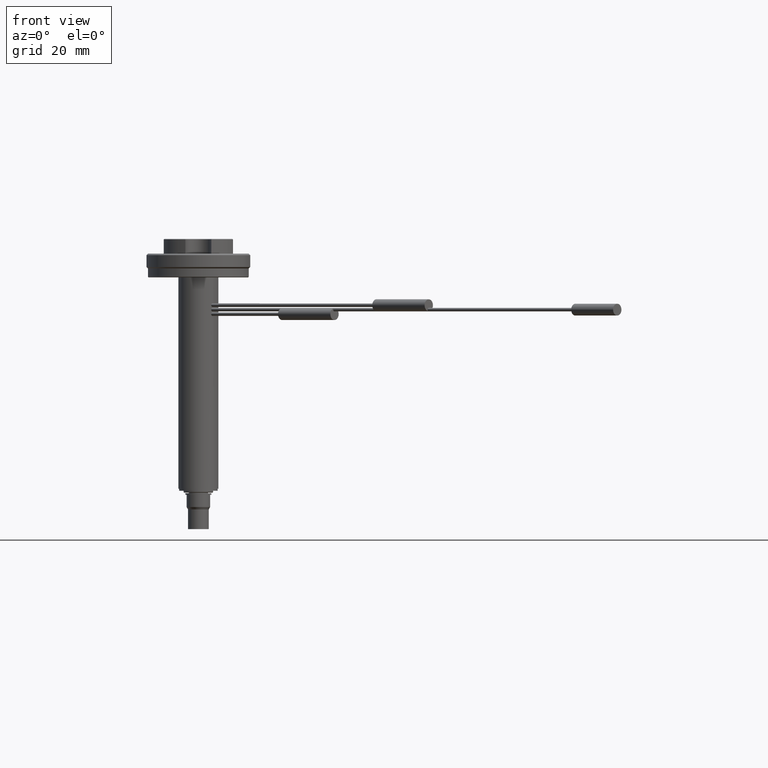
[diagram: clean part render]
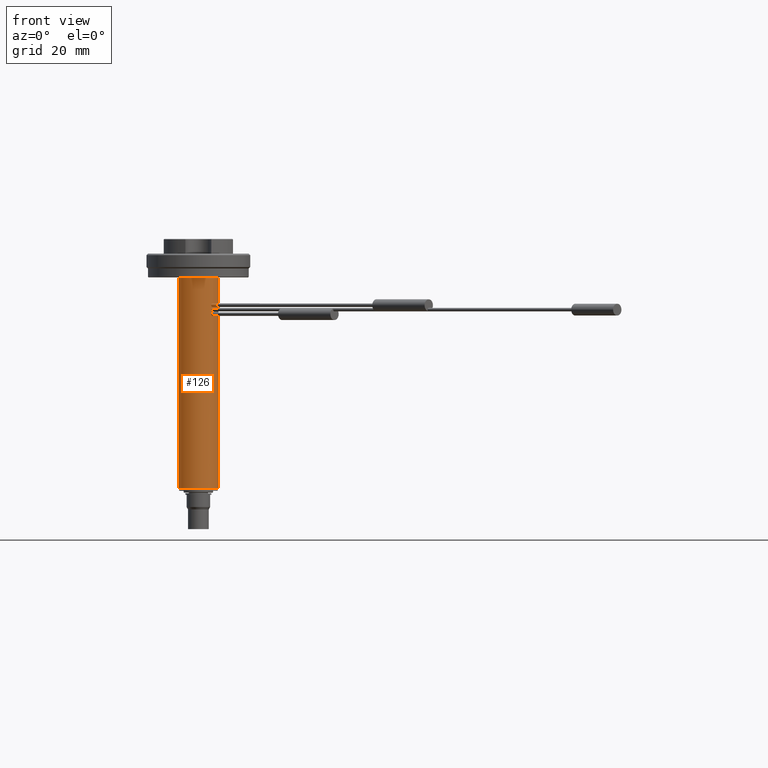
[diagram: same view with one face highlighted and labeled with its STEP entity id]
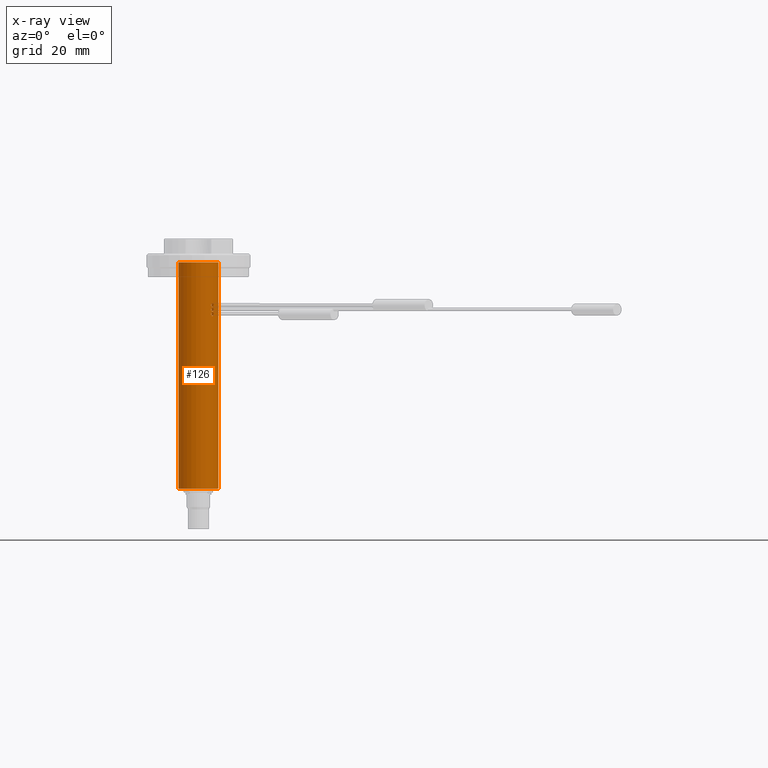
[diagram: x-ray of the same camera — body ghosted, the highlighted face saturated]
A machine part, front view. The second image highlights one B-rep face of the part: STEP entity #126.
The next image is the same camera in x-ray: the body ghosted, the highlighted face saturated — about 0% of this face is hidden behind the body in this view.
In plain terms, the highlighted cylindrical surface (bore or boss wall) has radius 6.75 mm, axis along (0, 0, 1).
Its self-contained STEP definition (entity closure, byte-faithful):
#126=ADVANCED_FACE('',(#325,#326,#327,#328,#329),#205,.T.);
#205=CYLINDRICAL_SURFACE('',#1048,6.75000000000002);
#235=CIRCLE('',#1046,6.75);
#236=CIRCLE('',#1047,6.74999999999999);
#325=FACE_BOUND('',#454,.T.);
#326=FACE_BOUND('',#455,.T.);
#327=FACE_BOUND('',#456,.T.);
#328=FACE_BOUND('',#457,.T.);
#329=FACE_BOUND('',#458,.T.);
#454=EDGE_LOOP('',(#602));
#455=EDGE_LOOP('',(#603));
#456=EDGE_LOOP('',(#604));
#457=EDGE_LOOP('',(#605));
#458=EDGE_LOOP('',(#606));
#602=ORIENTED_EDGE('',*,*,#921,.F.);
#603=ORIENTED_EDGE('',*,*,#922,.F.);
#604=ORIENTED_EDGE('',*,*,#923,.T.);
#605=ORIENTED_EDGE('',*,*,#924,.F.);
#606=ORIENTED_EDGE('',*,*,#925,.F.);
#828=VERTEX_POINT('',#1626);
#829=VERTEX_POINT('',#1628);
#830=VERTEX_POINT('',#1630);
#831=VERTEX_POINT('',#1689);
#832=VERTEX_POINT('',#1748);
#921=EDGE_CURVE('',#828,#828,#1034,.T.);
#922=EDGE_CURVE('',#829,#829,#235,.T.);
#923=EDGE_CURVE('',#830,#830,#236,.T.);
#924=EDGE_CURVE('',#831,#831,#1035,.T.);
#925=EDGE_CURVE('',#832,#832,#1036,.T.);
#1034=B_SPLINE_CURVE_WITH_KNOTS('',3,(#1568,#1569,#1570,#1571,#1572,#1573,
#1574,#1575,#1576,#1577,#1578,#1579,#1580,#1581,#1582,#1583,#1584,#1585,
#1586,#1587,#1588,#1589,#1590,#1591,#1592,#1593,#1594,#1595,#1596,#1597,
#1598,#1599,#1600,#1601,#1602,#1603,#1604,#1605,#1606,#1607,#1608,#1609,
#1610,#1611,#1612,#1613,#1614,#1615,#1616,#1617,#1618,#1619,#1620,#1621,
#1622,#1623,#1624,#1625),.UNSPECIFIED.,.T.,.F.,(1,3,3,3,3,3,3,3,3,3,3,3,
3,3,3,3,3,3,3,3,3,1),(-0.0346522403765883,0.,0.053559995994628,0.107110961370303,
0.160797288651027,0.21457666495937,0.268210527151096,0.321688295491679,
0.375241038550614,0.428983637632128,0.482736153422249,0.536301058189785,
0.58977423560765,0.643394022418884,0.697170322997007,0.750869254379598,
0.804378492957119,0.85788071695721,0.911568672134155,0.965347759623412,
1.,1.05355999599463),.UNSPECIFIED.);
#1035=B_SPLINE_CURVE_WITH_KNOTS('',3,(#1631,#1632,#1633,#1634,#1635,#1636,
#1637,#1638,#1639,#1640,#1641,#1642,#1643,#1644,#1645,#1646,#1647,#1648,
#1649,#1650,#1651,#1652,#1653,#1654,#1655,#1656,#1657,#1658,#1659,#1660,
#1661,#1662,#1663,#1664,#1665,#1666,#1667,#1668,#1669,#1670,#1671,#1672,
#1673,#1674,#1675,#1676,#1677,#1678,#1679,#1680,#1681,#1682,#1683,#1684,
#1685,#1686,#1687,#1688),.UNSPECIFIED.,.T.,.F.,(1,3,3,3,3,3,3,3,3,3,3,3,
3,3,3,3,3,3,3,3,3,1),(-0.0346522403765865,0.,0.0535599959946282,0.107110961370302,
0.160797288651028,0.214576664959369,0.268210527151097,0.321688295491677,
0.375241038550613,0.428983637632127,0.482736153422249,0.536301058189786,
0.58977423560765,0.643394022418884,0.697170322997008,0.750869254379599,
0.804378492957119,0.857880716957211,0.911568672134155,0.965347759623413,
1.,1.05355999599463),.UNSPECIFIED.);
#1036=B_SPLINE_CURVE_WITH_KNOTS('',3,(#1690,#1691,#1692,#1693,#1694,#1695,
#1696,#1697,#1698,#1699,#1700,#1701,#1702,#1703,#1704,#1705,#1706,#1707,
#1708,#1709,#1710,#1711,#1712,#1713,#1714,#1715,#1716,#1717,#1718,#1719,
#1720,#1721,#1722,#1723,#1724,#1725,#1726,#1727,#1728,#1729,#1730,#1731,
#1732,#1733,#1734,#1735,#1736,#1737,#1738,#1739,#1740,#1741,#1742,#1743,
#1744,#1745,#1746,#1747),.UNSPECIFIED.,.T.,.F.,(1,3,3,3,3,3,3,3,3,3,3,3,
3,3,3,3,3,3,3,3,3,1),(-0.0346522403765865,0.,0.0535599959946287,0.107110961370303,
0.160797288651027,0.214576664959369,0.268210527151097,0.321688295491676,
0.375241038550615,0.428983637632129,0.482736153422251,0.536301058189787,
0.589774235607651,0.643394022418884,0.697170322997007,0.750869254379599,
0.80437849295712,0.857880716957211,0.911568672134157,0.965347759623413,
1.,1.05355999599463),.UNSPECIFIED.);
#1046=AXIS2_PLACEMENT_3D('',#1627,#1217,#1218);
#1047=AXIS2_PLACEMENT_3D('',#1629,#1219,#1220);
#1048=AXIS2_PLACEMENT_3D('',#1749,#1221,#1222);
#1217=DIRECTION('',(0.,0.,1.));
#1218=DIRECTION('',(-1.,0.,0.));
#1219=DIRECTION('',(0.,0.,1.));
#1220=DIRECTION('',(1.,0.,0.));
#1221=DIRECTION('',(0.,0.,1.));
#1222=DIRECTION('',(1.,0.,0.));
#1568=CARTESIAN_POINT('',(4.32981312881023,-5.17834126623409,-23.9));
#1569=CARTESIAN_POINT('',(4.32981312881023,-5.17834126623409,-23.9670064301583));
#1570=CARTESIAN_POINT('',(4.33872451259778,-5.17092471646894,-24.0349362918585));
#1571=CARTESIAN_POINT('',(4.35568364499968,-5.15659965332607,-24.0981584563002));
#1572=CARTESIAN_POINT('',(4.37264115143552,-5.14227596360645,-24.1613745592823));
#1573=CARTESIAN_POINT('',(4.39809667090229,-5.12064397715603,-24.2216259393455));
#1574=CARTESIAN_POINT('',(4.42965326392807,-5.09319859826531,-24.2739703125111));
#1575=CARTESIAN_POINT('',(4.46128832944363,-5.06568497033348,-24.326444851607));
#1576=CARTESIAN_POINT('',(4.49991046899271,-5.03155474915369,-24.3724206802881));
#1577=CARTESIAN_POINT('',(4.54200065520223,-4.99326847346934,-24.4081128596072));
#1578=CARTESIAN_POINT('',(4.58415942876995,-4.95491980902549,-24.4438632005195));
#1579=CARTESIAN_POINT('',(4.63095199477887,-4.91132248371357,-24.470281159596));
#1580=CARTESIAN_POINT('',(4.67824938845986,-4.86584860629421,-24.4851523448932));
#1581=CARTESIAN_POINT('',(4.72541987267493,-4.82049674543954,-24.4999836274803));
#1582=CARTESIAN_POINT('',(4.77439013846135,-4.77201657916405,-24.5037371452256));
#1583=CARTESIAN_POINT('',(4.82104559987273,-4.72440676952653,-24.496096022663));
#1584=CARTESIAN_POINT('',(4.86757052131183,-4.67693017008654,-24.4884762796324));
#1585=CARTESIAN_POINT('',(4.91307817740424,-4.62901641525088,-24.4693203699528));
#1586=CARTESIAN_POINT('',(4.95400222717408,-4.58479682572244,-24.4402255878515));
#1587=CARTESIAN_POINT('',(4.99498479268789,-4.54051400828293,-24.4110892042266));
#1588=CARTESIAN_POINT('',(5.03251155530978,-4.49873001989827,-24.3711891531049));
#1589=CARTESIAN_POINT('',(5.06383622556902,-4.46318974284258,-24.3238064433137));
#1590=CARTESIAN_POINT('',(5.09526882254384,-4.42752701452589,-24.2762604800803));
#1591=CARTESIAN_POINT('',(5.12133985036415,-4.39718394516673,-24.2198657796859));
#1592=CARTESIAN_POINT('',(5.14021989747713,-4.37500164635174,-24.1592691922931));
#1593=CARTESIAN_POINT('',(5.15910203567869,-4.35281689070222,-24.0986658934323));
#1594=CARTESIAN_POINT('',(5.17132424059313,-4.33819774053933,-24.0321784926327));
#1595=CARTESIAN_POINT('',(5.17604256702157,-4.33256082985352,-23.9653397239969));
#1596=CARTESIAN_POINT('',(5.18074475081458,-4.32694320452144,-23.8987296283644));
#1597=CARTESIAN_POINT('',(5.17812749912991,-4.33009534818066,-23.8299315846175));
#1598=CARTESIAN_POINT('',(5.16837006174349,-4.34171059662824,-23.7646594503938));
#1599=CARTESIAN_POINT('',(5.15862832649703,-4.35330715325647,-23.6994923552441));
#1600=CARTESIAN_POINT('',(5.14149778708511,-4.37364637575262,-23.6360473592978));
#1601=CARTESIAN_POINT('',(5.11815294361675,-4.40079656945734,-23.5795317235257));
#1602=CARTESIAN_POINT('',(5.09474463607563,-4.42802057226133,-23.5228624472964));
#1603=CARTESIAN_POINT('',(5.06443075409758,-4.462824957076,-23.4715991423169));
#1604=CARTESIAN_POINT('',(5.02935668339148,-4.5020074801388,-23.4299453128471));
#1605=CARTESIAN_POINT('',(4.99418420988583,-4.54129993255641,-23.3881746205967));
#1606=CARTESIAN_POINT('',(4.95323385194061,-4.5860677350654,-23.3549156940318));
#1607=CARTESIAN_POINT('',(4.90959846721883,-4.6323150681579,-23.3329400752102));
#1608=CARTESIAN_POINT('',(4.86602703661762,-4.67849461893257,-23.3109966649135));
#1609=CARTESIAN_POINT('',(4.81856059604698,-4.72741855801884,-23.2997008267163));
#1610=CARTESIAN_POINT('',(4.7710417195123,-4.77489904717088,-23.3000061996056));
#1611=CARTESIAN_POINT('',(4.72368590560334,-4.8222166054248,-23.3003105245976));
#1612=CARTESIAN_POINT('',(4.67497339107114,-4.86940500316652,-23.3121426392884));
#1613=CARTESIAN_POINT('',(4.62905079841894,-4.91267632820007,-23.334510584159));
#1614=CARTESIAN_POINT('',(4.58313096080438,-4.95594505725367,-23.3568771871078));
#1615=CARTESIAN_POINT('',(4.53874810439044,-4.99649797666824,-23.390387249672));
#1616=CARTESIAN_POINT('',(4.49982829795765,-5.03130651907632,-23.4322763099454));
#1617=CARTESIAN_POINT('',(4.46077603372946,-5.06623352720175,-23.4743079334298));
#1618=CARTESIAN_POINT('',(4.42616337388462,-5.09635585967287,-23.5259339047537));
#1619=CARTESIAN_POINT('',(4.39918492126838,-5.11953826321137,-23.582910846329));
#1620=CARTESIAN_POINT('',(4.37216346195096,-5.14275762211997,-23.6399786155858));
#1621=CARTESIAN_POINT('',(4.35207130471318,-5.15966961179894,-23.7039977150746));
#1622=CARTESIAN_POINT('',(4.34083881049649,-5.16910228388719,-23.7696550372151));
#1623=CARTESIAN_POINT('',(4.33354055091511,-5.17523111761886,-23.8123155693423));
#1624=CARTESIAN_POINT('',(4.32981312881023,-5.17834126623409,-23.8562878941573));
#1625=CARTESIAN_POINT('',(4.32981312881023,-5.17834126623409,-23.9));
#1626=CARTESIAN_POINT('',(4.32981312881023,-5.17834126623409,-23.9));
#1627=CARTESIAN_POINT('',(0.,0.,-8.));
#1628=CARTESIAN_POINT('',(-6.75,0.,-8.));
#1629=CARTESIAN_POINT('',(0.,0.,-84.36));
#1630=CARTESIAN_POINT('',(6.74999999999999,0.,-84.36));
#1631=CARTESIAN_POINT('',(4.32981312881023,-5.17834126623408,-22.4));
#1632=CARTESIAN_POINT('',(4.32981312881023,-5.17834126623408,-22.4670064301583));
#1633=CARTESIAN_POINT('',(4.33872451259778,-5.17092471646893,-22.5349362918585));
#1634=CARTESIAN_POINT('',(4.35568364499968,-5.15659965332607,-22.5981584563002));
#1635=CARTESIAN_POINT('',(4.37264115143552,-5.14227596360645,-22.6613745592823));
#1636=CARTESIAN_POINT('',(4.39809667090229,-5.12064397715603,-22.7216259393455));
#1637=CARTESIAN_POINT('',(4.42965326392807,-5.09319859826531,-22.7739703125111));
#1638=CARTESIAN_POINT('',(4.46128832944364,-5.06568497033347,-22.826444851607));
#1639=CARTESIAN_POINT('',(4.49991046899272,-5.03155474915368,-22.8724206802881));
#1640=CARTESIAN_POINT('',(4.54200065520224,-4.99326847346933,-22.9081128596072));
#1641=CARTESIAN_POINT('',(4.58415942876996,-4.95491980902548,-22.9438632005195));
#1642=CARTESIAN_POINT('',(4.63095199477888,-4.91132248371356,-22.970281159596));
#1643=CARTESIAN_POINT('',(4.67824938845986,-4.8658486062942,-22.9851523448932));
#1644=CARTESIAN_POINT('',(4.72541987267494,-4.82049674543953,-22.9999836274803));
#1645=CARTESIAN_POINT('',(4.77439013846135,-4.77201657916404,-23.0037371452256));
#1646=CARTESIAN_POINT('',(4.82104559987274,-4.72440676952652,-22.996096022663));
#1647=CARTESIAN_POINT('',(4.86757052131183,-4.67693017008653,-22.9884762796324));
#1648=CARTESIAN_POINT('',(4.91307817740425,-4.62901641525088,-22.9693203699528));
#1649=CARTESIAN_POINT('',(4.95400222717408,-4.58479682572243,-22.9402255878515));
#1650=CARTESIAN_POINT('',(4.99498479268789,-4.54051400828292,-22.9110892042266));
#1651=CARTESIAN_POINT('',(5.03251155530978,-4.49873001989826,-22.8711891531049));
#1652=CARTESIAN_POINT('',(5.06383622556902,-4.46318974284257,-22.8238064433137));
#1653=CARTESIAN_POINT('',(5.09526882254385,-4.42752701452589,-22.7762604800803));
#1654=CARTESIAN_POINT('',(5.12133985036416,-4.39718394516673,-22.7198657796859));
#1655=CARTESIAN_POINT('',(5.14021989747714,-4.37500164635174,-22.6592691922931));
#1656=CARTESIAN_POINT('',(5.1591020356787,-4.35281689070221,-22.5986658934322));
#1657=CARTESIAN_POINT('',(5.17132424059313,-4.33819774053933,-22.5321784926327));
#1658=CARTESIAN_POINT('',(5.17604256702157,-4.33256082985353,-22.4653397239969));
#1659=CARTESIAN_POINT('',(5.18074475081457,-4.32694320452145,-22.3987296283644));
#1660=CARTESIAN_POINT('',(5.1781274991299,-4.33009534818067,-22.3299315846175));
#1661=CARTESIAN_POINT('',(5.16837006174348,-4.34171059662824,-22.2646594503938));
#1662=CARTESIAN_POINT('',(5.15862832649703,-4.35330715325648,-22.1994923552441));
#1663=CARTESIAN_POINT('',(5.1414977870851,-4.37364637575262,-22.1360473592978));
#1664=CARTESIAN_POINT('',(5.11815294361675,-4.40079656945734,-22.0795317235257));
#1665=CARTESIAN_POINT('',(5.09474463607563,-4.42802057226133,-22.0228624472964));
#1666=CARTESIAN_POINT('',(5.06443075409757,-4.462824957076,-21.9715991423169));
#1667=CARTESIAN_POINT('',(5.02935668339148,-4.50200748013881,-21.9299453128471));
#1668=CARTESIAN_POINT('',(4.99418420988583,-4.54129993255641,-21.8881746205967));
#1669=CARTESIAN_POINT('',(4.9532338519406,-4.58606773506541,-21.8549156940318));
#1670=CARTESIAN_POINT('',(4.90959846721883,-4.63231506815791,-21.8329400752102));
#1671=CARTESIAN_POINT('',(4.86602703661761,-4.67849461893258,-21.8109966649135));
#1672=CARTESIAN_POINT('',(4.81856059604697,-4.72741855801885,-21.7997008267163));
#1673=CARTESIAN_POINT('',(4.7710417195123,-4.77489904717089,-21.8000061996056));
#1674=CARTESIAN_POINT('',(4.72368590560334,-4.82221660542481,-21.8003105245976));
#1675=CARTESIAN_POINT('',(4.67497339107114,-4.86940500316652,-21.8121426392884));
#1676=CARTESIAN_POINT('',(4.62905079841893,-4.91267632820007,-21.834510584159));
#1677=CARTESIAN_POINT('',(4.58313096080438,-4.95594505725367,-21.8568771871078));
#1678=CARTESIAN_POINT('',(4.53874810439044,-4.99649797666824,-21.8903872496721));
#1679=CARTESIAN_POINT('',(4.49982829795764,-5.03130651907632,-21.9322763099454));
#1680=CARTESIAN_POINT('',(4.46077603372946,-5.06623352720175,-21.9743079334298));
#1681=CARTESIAN_POINT('',(4.42616337388461,-5.09635585967288,-22.0259339047537));
#1682=CARTESIAN_POINT('',(4.39918492126837,-5.11953826321137,-22.082910846329));
#1683=CARTESIAN_POINT('',(4.37216346195095,-5.14275762211998,-22.1399786155858));
#1684=CARTESIAN_POINT('',(4.35207130471318,-5.15966961179894,-22.2039977150746));
#1685=CARTESIAN_POINT('',(4.34083881049649,-5.16910228388719,-22.2696550372151));
#1686=CARTESIAN_POINT('',(4.33354055091511,-5.17523111761886,-22.3123155693423));
#1687=CARTESIAN_POINT('',(4.32981312881023,-5.17834126623408,-22.3562878941573));
#1688=CARTESIAN_POINT('',(4.32981312881023,-5.17834126623408,-22.4));
#1689=CARTESIAN_POINT('',(4.32981312881023,-5.17834126623408,-22.4));
#1690=CARTESIAN_POINT('',(4.32981312881023,-5.17834126623409,-25.4));
#1691=CARTESIAN_POINT('',(4.32981312881023,-5.17834126623409,-25.4670064301583));
#1692=CARTESIAN_POINT('',(4.33872451259778,-5.17092471646894,-25.5349362918585));
#1693=CARTESIAN_POINT('',(4.35568364499968,-5.15659965332607,-25.5981584563002));
#1694=CARTESIAN_POINT('',(4.37264115143552,-5.14227596360645,-25.6613745592823));
#1695=CARTESIAN_POINT('',(4.3980966709023,-5.12064397715603,-25.7216259393455));
#1696=CARTESIAN_POINT('',(4.42965326392807,-5.09319859826531,-25.7739703125111));
#1697=CARTESIAN_POINT('',(4.46128832944364,-5.06568497033347,-25.826444851607));
#1698=CARTESIAN_POINT('',(4.49991046899271,-5.03155474915369,-25.8724206802881));
#1699=CARTESIAN_POINT('',(4.54200065520223,-4.99326847346934,-25.9081128596072));
#1700=CARTESIAN_POINT('',(4.58415942876995,-4.95491980902549,-25.9438632005195));
#1701=CARTESIAN_POINT('',(4.63095199477887,-4.91132248371357,-25.970281159596));
#1702=CARTESIAN_POINT('',(4.67824938845986,-4.86584860629421,-25.9851523448932));
#1703=CARTESIAN_POINT('',(4.72541987267494,-4.82049674543954,-25.9999836274803));
#1704=CARTESIAN_POINT('',(4.77439013846135,-4.77201657916405,-26.0037371452256));
#1705=CARTESIAN_POINT('',(4.82104559987274,-4.72440676952652,-25.996096022663));
#1706=CARTESIAN_POINT('',(4.86757052131183,-4.67693017008654,-25.9884762796324));
#1707=CARTESIAN_POINT('',(4.91307817740424,-4.62901641525088,-25.9693203699528));
#1708=CARTESIAN_POINT('',(4.95400222717408,-4.58479682572244,-25.9402255878515));
#1709=CARTESIAN_POINT('',(4.99498479268789,-4.54051400828292,-25.9110892042266));
#1710=CARTESIAN_POINT('',(5.03251155530978,-4.49873001989827,-25.8711891531049));
#1711=CARTESIAN_POINT('',(5.06383622556902,-4.46318974284257,-25.8238064433137));
#1712=CARTESIAN_POINT('',(5.09526882254384,-4.42752701452589,-25.7762604800803));
#1713=CARTESIAN_POINT('',(5.12133985036416,-4.39718394516673,-25.7198657796859));
#1714=CARTESIAN_POINT('',(5.14021989747714,-4.37500164635174,-25.6592691922931));
#1715=CARTESIAN_POINT('',(5.1591020356787,-4.35281689070222,-25.5986658934322));
#1716=CARTESIAN_POINT('',(5.17132424059313,-4.33819774053933,-25.5321784926327));
#1717=CARTESIAN_POINT('',(5.17604256702157,-4.33256082985353,-25.4653397239969));
#1718=CARTESIAN_POINT('',(5.18074475081457,-4.32694320452145,-25.3987296283644));
#1719=CARTESIAN_POINT('',(5.1781274991299,-4.33009534818067,-25.3299315846175));
#1720=CARTESIAN_POINT('',(5.16837006174348,-4.34171059662825,-25.2646594503938));
#1721=CARTESIAN_POINT('',(5.15862832649702,-4.35330715325648,-25.1994923552441));
#1722=CARTESIAN_POINT('',(5.1414977870851,-4.37364637575262,-25.1360473592978));
#1723=CARTESIAN_POINT('',(5.11815294361675,-4.40079656945734,-25.0795317235257));
#1724=CARTESIAN_POINT('',(5.09474463607563,-4.42802057226133,-25.0228624472964));
#1725=CARTESIAN_POINT('',(5.06443075409758,-4.462824957076,-24.9715991423169));
#1726=CARTESIAN_POINT('',(5.02935668339148,-4.5020074801388,-24.9299453128471));
#1727=CARTESIAN_POINT('',(4.99418420988583,-4.54129993255641,-24.8881746205967));
#1728=CARTESIAN_POINT('',(4.9532338519406,-4.5860677350654,-24.8549156940318));
#1729=CARTESIAN_POINT('',(4.90959846721883,-4.63231506815791,-24.8329400752102));
#1730=CARTESIAN_POINT('',(4.86602703661762,-4.67849461893257,-24.8109966649135));
#1731=CARTESIAN_POINT('',(4.81856059604697,-4.72741855801885,-24.7997008267163));
#1732=CARTESIAN_POINT('',(4.7710417195123,-4.77489904717089,-24.8000061996056));
#1733=CARTESIAN_POINT('',(4.72368590560334,-4.82221660542481,-24.8003105245976));
#1734=CARTESIAN_POINT('',(4.67497339107114,-4.86940500316652,-24.8121426392884));
#1735=CARTESIAN_POINT('',(4.62905079841893,-4.91267632820007,-24.834510584159));
#1736=CARTESIAN_POINT('',(4.58313096080438,-4.95594505725367,-24.8568771871078));
#1737=CARTESIAN_POINT('',(4.53874810439043,-4.99649797666825,-24.8903872496721));
#1738=CARTESIAN_POINT('',(4.49982829795764,-5.03130651907632,-24.9322763099454));
#1739=CARTESIAN_POINT('',(4.46077603372946,-5.06623352720175,-24.9743079334298));
#1740=CARTESIAN_POINT('',(4.42616337388461,-5.09635585967288,-25.0259339047537));
#1741=CARTESIAN_POINT('',(4.39918492126837,-5.11953826321137,-25.082910846329));
#1742=CARTESIAN_POINT('',(4.37216346195095,-5.14275762211998,-25.1399786155858));
#1743=CARTESIAN_POINT('',(4.35207130471318,-5.15966961179894,-25.2039977150746));
#1744=CARTESIAN_POINT('',(4.34083881049649,-5.16910228388719,-25.2696550372151));
#1745=CARTESIAN_POINT('',(4.33354055091511,-5.17523111761886,-25.3123155693423));
#1746=CARTESIAN_POINT('',(4.32981312881023,-5.17834126623409,-25.3562878941573));
#1747=CARTESIAN_POINT('',(4.32981312881023,-5.17834126623409,-25.4));
#1748=CARTESIAN_POINT('',(4.32981312881023,-5.17834126623409,-25.4));
#1749=CARTESIAN_POINT('',(0.,0.,0.));